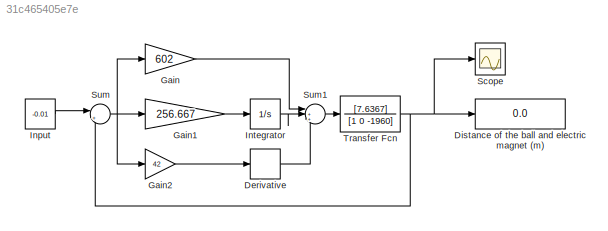
MODEL slx_31c465405e7e
KIND model
CONFIG AbsTol = auto
CONFIG EnableMultiTasking = on
CONFIG FixedStep = auto
CONFIG MaxStep = auto
CONFIG MinStep = auto
CONFIG RelTol = 1e-3
CONFIG SampleTimeConstraint = Unconstrained
CONFIG SolverName = ode45
CONFIG StartTime = 0.0
CONFIG StopTime = 10.0
BLOCK [Derivative] Derivative
BLOCK [Display] Distance of the ball and electric magnet   (m)
  Decimation = 50
BLOCK [Gain] Gain
  Gain = 602
BLOCK [Gain] Gain1
  Gain = 256.667
BLOCK [Gain] Gain2
  Gain = 42
BLOCK [Constant] Input
  Value = -0.01
BLOCK [Integrator] Integrator
BLOCK [Scope] Scope
  Floating = off
  NumInputPorts = 1
  ScopeSpecificationString = Simulink.scopes.TimeScopeBlockCfg('CurrentConfiguration', extmgr.ConfigurationSet(extmgr.Configuration('Core','General UI',true),extmgr.Configuration('Core','Source UI',true),extmgr.Configuration('Sources','WiredSimulink',true,'DataLoggingLimitDataPoints',true,'DataLoggingSaveFormat','StructureWithTime','DataLoggingDecimation','1','DataLoggingDecimateData',true,'DataLogging',true,'DataLoggingMaxPo...<+1699ch>
BLOCK [Sum] Sum
  Inputs = |+-
BLOCK [Sum] Sum1
  Inputs = |+++
BLOCK [TransferFcn] Transfer Fcn
  Denominator = [1 0 -1960]
  Numerator = [7.6367]
LINE Derivative:1 -> Sum1:3
LINE Gain1:1 -> Integrator:1
LINE Gain2:1 -> Derivative:1
LINE Gain:1 -> Sum1:1
LINE Input:1 -> Sum:1
LINE Integrator:1 -> Sum1:2
LINE Sum1:1 -> Transfer Fcn:1
NET Sum:1 -> Gain1:1, Gain2:1, Gain:1
NET Transfer Fcn:1 -> Distance of the ball and electric magnet   (m):1, Scope:1, Sum:2
note: NET lines group one-source signal fan-out (src -> all destinations, sorted); 1:1 wires keep LINE
